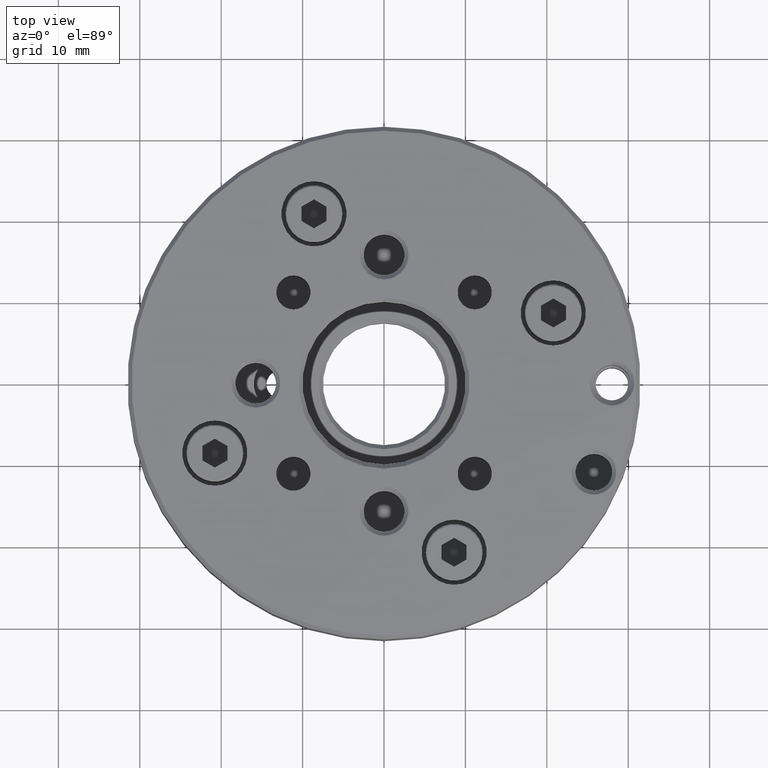
[diagram: clean part render]
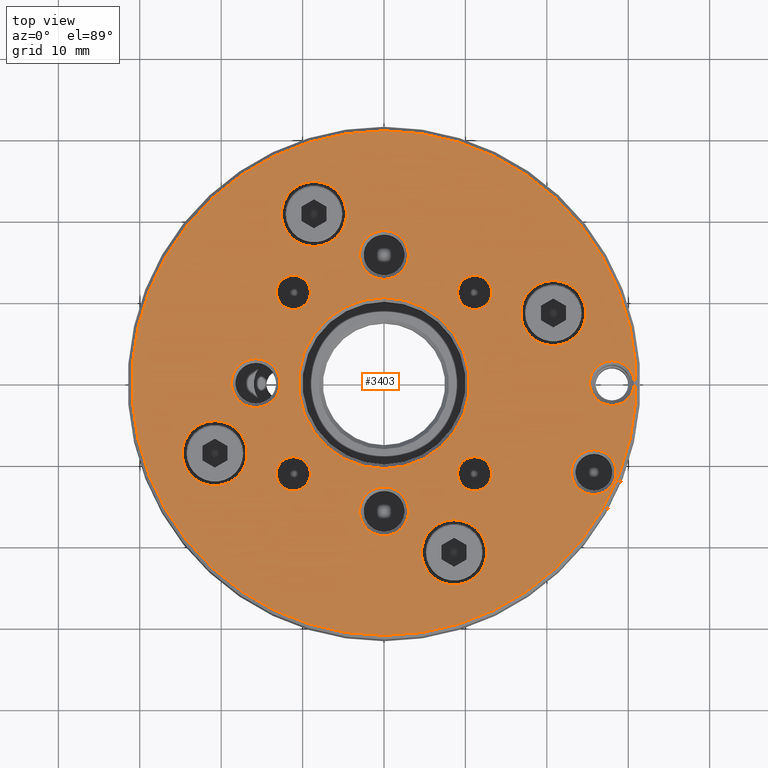
[diagram: same view with one face highlighted and labeled with its STEP entity id]
A machine part, top view. The second image highlights one B-rep face of the part: STEP entity #3403.
In plain terms, the highlighted planar face has unit normal (0, -0, 1).
Its self-contained STEP definition (entity closure, byte-faithful):
#63 = AXIS2_PLACEMENT_3D ( 'NONE', #3410, #287, #2800 ) ;
#82 = CARTESIAN_POINT ( 'NONE',  ( -20.78728948150396150, -8.610377228214501244, 6.500000000000000888 ) ) ;
#101 = CIRCLE ( 'NONE', #3565, 2.750000000000016431 ) ;
#107 = AXIS2_PLACEMENT_3D ( 'NONE', #143, #733, #5930 ) ;
#120 = CARTESIAN_POINT ( 'NONE',  ( 3.608224830031758756E-16, 5.279885597072334881E-41, 6.500000000000000000 ) ) ;
#143 = CARTESIAN_POINT ( 'NONE',  ( 3.608224830031758756E-16, 5.279885597072334881E-41, 6.500000000000000000 ) ) ;
#153 = AXIS2_PLACEMENT_3D ( 'NONE', #4157, #3148, #645 ) ;
#208 = VERTEX_POINT ( 'NONE', #1430 ) ;
#210 = CARTESIAN_POINT ( 'NONE',  ( -15.75000000000000000, 3.000000000000245137, 6.500000000000000888 ) ) ;
#234 = CARTESIAN_POINT ( 'NONE',  ( 28.00000000000000000, 2.750000000000067946, 6.499999999999998224 ) ) ;
#249 = DIRECTION ( 'NONE',  ( -5.551115123125782702E-17, -8.122900918572823875E-42, -1.000000000000000000 ) ) ;
#252 = AXIS2_PLACEMENT_3D ( 'NONE', #120, #3242, #2727 ) ;
#280 = EDGE_CURVE ( 'NONE', #2080, #543, #3225, .T. ) ;
#287 = DIRECTION ( 'NONE',  ( -5.551115123125782702E-17, -8.122900918572823875E-42, -1.000000000000000000 ) ) ;
#291 = CIRCLE ( 'NONE', #2356, 2.099999999999999645 ) ;
#352 = VERTEX_POINT ( 'NONE', #6451 ) ;
#423 = VERTEX_POINT ( 'NONE', #1890 ) ;
#460 = ORIENTED_EDGE ( 'NONE', *, *, #3744, .T. ) ;
#461 = DIRECTION ( 'NONE',  ( 0.0000000000000000000, -1.000000000000000000, 0.0000000000000000000 ) ) ;
#462 = CARTESIAN_POINT ( 'NONE',  ( 20.78728948150396505, 4.610377228214497691, 6.499999999999999112 ) ) ;
#482 = AXIS2_PLACEMENT_3D ( 'NONE', #3699, #4781, #2110 ) ;
#497 = DIRECTION ( 'NONE',  ( 5.551115123125782702E-17, 8.122900918572823875E-42, 1.000000000000000000 ) ) ;
#516 = EDGE_LOOP ( 'NONE', ( #3802, #2490 ) ) ;
#532 = CARTESIAN_POINT ( 'NONE',  ( -20.78728948150396150, -8.610377228214501244, 6.500000000000000888 ) ) ;
#543 = VERTEX_POINT ( 'NONE', #6042 ) ;
#558 = DIRECTION ( 'NONE',  ( -5.551115123125782702E-17, -8.122900918572823875E-42, -1.000000000000000000 ) ) ;
#611 = ORIENTED_EDGE ( 'NONE', *, *, #6184, .F. ) ;
#618 = CIRCLE ( 'NONE', #2560, 3.000000000000068390 ) ;
#645 = DIRECTION ( 'NONE',  ( 0.0000000000000000000, -1.000000000000000000, 0.0000000000000000000 ) ) ;
#659 = DIRECTION ( 'NONE',  ( 0.0000000000000000000, -1.000000000000000000, 0.0000000000000000000 ) ) ;
#661 = DIRECTION ( 'NONE',  ( 0.0000000000000000000, -1.000000000000000000, 0.0000000000000000000 ) ) ;
#686 = DIRECTION ( 'NONE',  ( 0.0000000000000000000, -1.000000000000000000, 0.0000000000000000000 ) ) ;
#692 = FACE_BOUND ( 'NONE', #3286, .T. ) ;
#696 = CIRCLE ( 'NONE', #2425, 10.50000000000004974 ) ;
#704 = EDGE_CURVE ( 'NONE', #5131, #352, #4706, .T. ) ;
#705 = CARTESIAN_POINT ( 'NONE',  ( 3.608224830031758756E-16, -15.75000000000000000, 6.500000000000000000 ) ) ;
#733 = DIRECTION ( 'NONE',  ( 5.551115123125782702E-17, -6.583955517712617581E-42, 1.000000000000000000 ) ) ;
#786 = VERTEX_POINT ( 'NONE', #6478 ) ;
#802 = VERTEX_POINT ( 'NONE', #210 ) ;
#826 = EDGE_CURVE ( 'NONE', #4117, #3380, #4053, .T. ) ;
#851 = VERTEX_POINT ( 'NONE', #1637 ) ;
#866 = AXIS2_PLACEMENT_3D ( 'NONE', #4986, #1915, #4551 ) ;
#915 = ORIENTED_EDGE ( 'NONE', *, *, #2895, .F. ) ;
#958 = AXIS2_PLACEMENT_3D ( 'NONE', #1122, #3189, #2714 ) ;
#970 = ORIENTED_EDGE ( 'NONE', *, *, #6207, .T. ) ;
#1018 = CARTESIAN_POINT ( 'NONE',  ( 11.13693180368810509, -13.23693180368809763, 6.499999999999999112 ) ) ;
#1028 = CIRCLE ( 'NONE', #6531, 3.000000000000071942 ) ;
#1049 = ORIENTED_EDGE ( 'NONE', *, *, #5520, .F. ) ;
#1054 = VERTEX_POINT ( 'NONE', #6499 ) ;
#1060 = CIRCLE ( 'NONE', #2677, 31.00000000000004974 ) ;
#1070 = DIRECTION ( 'NONE',  ( 5.551115123125782702E-17, 8.122900918572823875E-42, 1.000000000000000000 ) ) ;
#1106 = CARTESIAN_POINT ( 'NONE',  ( 3.608224830031758756E-16, 15.75000000000000000, 6.500000000000000000 ) ) ;
#1122 = CARTESIAN_POINT ( 'NONE',  ( 11.13693180368809976, 11.13693180368815128, 6.499999999999999112 ) ) ;
#1134 = ORIENTED_EDGE ( 'NONE', *, *, #5687, .T. ) ;
#1135 = CARTESIAN_POINT ( 'NONE',  ( 3.608224830031758756E-16, -10.50000000000004974, 6.500000000000000000 ) ) ;
#1154 = CIRCLE ( 'NONE', #2341, 4.000000000000000000 ) ;
#1155 = CARTESIAN_POINT ( 'NONE',  ( 7.282165227473905892E-16, -12.74999999999992895, 6.500000000000000000 ) ) ;
#1169 = CIRCLE ( 'NONE', #6458, 3.000000000000068390 ) ;
#1189 = CARTESIAN_POINT ( 'NONE',  ( 4.173965942530845054E-15, -31.00000000000004974, 6.500000000000000000 ) ) ;
#1197 = DIRECTION ( 'NONE',  ( 5.551115123125782702E-17, 8.122900918572823875E-42, 1.000000000000000000 ) ) ;
#1203 = CARTESIAN_POINT ( 'NONE',  ( 8.610377228214499468, -20.78728948150396860, 6.499999999999999112 ) ) ;
#1223 = EDGE_LOOP ( 'NONE', ( #5215, #5971 ) ) ;
#1307 = CARTESIAN_POINT ( 'NONE',  ( -15.75000000000000000, 9.035696567507842603E-14, 6.500000000000000888 ) ) ;
#1315 = DIRECTION ( 'NONE',  ( 0.0000000000000000000, -1.000000000000000000, 0.0000000000000000000 ) ) ;
#1326 = EDGE_CURVE ( 'NONE', #4326, #423, #3082, .T. ) ;
#1334 = ORIENTED_EDGE ( 'NONE', *, *, #3080, .T. ) ;
#1430 = CARTESIAN_POINT ( 'NONE',  ( 11.13693180368809976, 9.036931803688151632, 6.499999999999999112 ) ) ;
#1456 = ORIENTED_EDGE ( 'NONE', *, *, #5486, .T. ) ;
#1459 = CARTESIAN_POINT ( 'NONE',  ( 11.13693180368810509, -11.13693180368809799, 6.499999999999999112 ) ) ;
#1466 = AXIS2_PLACEMENT_3D ( 'NONE', #2215, #3196, #659 ) ;
#1473 = EDGE_LOOP ( 'NONE', ( #1049, #2257 ) ) ;
#1494 = AXIS2_PLACEMENT_3D ( 'NONE', #82, #5694, #3102 ) ;
#1500 = AXIS2_PLACEMENT_3D ( 'NONE', #5194, #6380, #3682 ) ;
#1564 = ORIENTED_EDGE ( 'NONE', *, *, #3858, .T. ) ;
#1593 = AXIS2_PLACEMENT_3D ( 'NONE', #2737, #1865, #5973 ) ;
#1597 = CIRCLE ( 'NONE', #1494, 4.000000000000000000 ) ;
#1623 = CIRCLE ( 'NONE', #866, 2.099999999999999645 ) ;
#1637 = CARTESIAN_POINT ( 'NONE',  ( 3.608224830031758756E-16, -18.75000000000007105, 6.500000000000000000 ) ) ;
#1651 = DIRECTION ( 'NONE',  ( 0.0000000000000000000, -1.000000000000000000, 0.0000000000000000000 ) ) ;
#1676 = EDGE_CURVE ( 'NONE', #2520, #851, #1028, .T. ) ;
#1678 = CARTESIAN_POINT ( 'NONE',  ( 3.608224830031758756E-16, 12.74999999999993072, 6.500000000000000000 ) ) ;
#1741 = CARTESIAN_POINT ( 'NONE',  ( -11.13693180368815128, 11.13693180368814950, 6.500000000000000888 ) ) ;
#1754 = DIRECTION ( 'NONE',  ( 0.0000000000000000000, -1.000000000000000000, 0.0000000000000000000 ) ) ;
#1755 = EDGE_CURVE ( 'NONE', #3285, #3118, #4586, .T. ) ;
#1787 = DIRECTION ( 'NONE',  ( 5.551115123125782702E-17, 8.122900918572823875E-42, 1.000000000000000000 ) ) ;
#1793 = CIRCLE ( 'NONE', #2760, 2.099999999999999645 ) ;
#1801 = EDGE_CURVE ( 'NONE', #5214, #3455, #3069, .T. ) ;
#1819 = FACE_BOUND ( 'NONE', #5601, .T. ) ;
#1827 = DIRECTION ( 'NONE',  ( 5.551115123125782702E-17, 8.122900918572823875E-42, 1.000000000000000000 ) ) ;
#1853 = FACE_BOUND ( 'NONE', #3050, .T. ) ;
#1865 = DIRECTION ( 'NONE',  ( -5.551115123125782702E-17, -8.122900918572823875E-42, -1.000000000000000000 ) ) ;
#1887 = ORIENTED_EDGE ( 'NONE', *, *, #1676, .T. ) ;
#1890 = CARTESIAN_POINT ( 'NONE',  ( 25.77413589666830163, -13.69047159769975153, 6.499999999999998224 ) ) ;
#1915 = DIRECTION ( 'NONE',  ( 5.551115123125782702E-17, 8.122900918572823875E-42, 1.000000000000000000 ) ) ;
#1951 = CIRCLE ( 'NONE', #2810, 3.000000000000071942 ) ;
#2080 = VERTEX_POINT ( 'NONE', #2715 ) ;
#2110 = DIRECTION ( 'NONE',  ( 0.0000000000000000000, -1.000000000000000000, 0.0000000000000000000 ) ) ;
#2188 = VERTEX_POINT ( 'NONE', #4077 ) ;
#2193 = CARTESIAN_POINT ( 'NONE',  ( 3.608224830031758756E-16, -15.75000000000000000, 6.500000000000000000 ) ) ;
#2215 = CARTESIAN_POINT ( 'NONE',  ( 28.00000000000000000, 1.021274108494992091E-14, 6.499999999999998224 ) ) ;
#2218 = DIRECTION ( 'NONE',  ( 5.551115123125782702E-17, 8.122900918572823875E-42, 1.000000000000000000 ) ) ;
#2257 = ORIENTED_EDGE ( 'NONE', *, *, #280, .F. ) ;
#2268 = CARTESIAN_POINT ( 'NONE',  ( -15.75000000000000000, -3.000000000000064837, 6.500000000000000888 ) ) ;
#2272 = VERTEX_POINT ( 'NONE', #3461 ) ;
#2277 = DIRECTION ( 'NONE',  ( 5.551115123125782702E-17, 8.122900918572823875E-42, 1.000000000000000000 ) ) ;
#2296 = CARTESIAN_POINT ( 'NONE',  ( -8.610377228214497691, 20.78728948150396505, 6.500000000000000888 ) ) ;
#2312 = FACE_BOUND ( 'NONE', #4099, .T. ) ;
#2327 = CIRCLE ( 'NONE', #3193, 4.000000000000000000 ) ;
#2330 = AXIS2_PLACEMENT_3D ( 'NONE', #1741, #3227, #2744 ) ;
#2341 = AXIS2_PLACEMENT_3D ( 'NONE', #532, #3143, #4254 ) ;
#2351 = AXIS2_PLACEMENT_3D ( 'NONE', #2296, #6420, #2430 ) ;
#2356 = AXIS2_PLACEMENT_3D ( 'NONE', #3803, #2277, #6436 ) ;
#2361 = CARTESIAN_POINT ( 'NONE',  ( 20.78728948150396505, 8.610377228214495915, 6.499999999999999112 ) ) ;
#2410 = CARTESIAN_POINT ( 'NONE',  ( -11.13693180368814772, -11.13693180368810332, 6.500000000000000888 ) ) ;
#2425 = AXIS2_PLACEMENT_3D ( 'NONE', #6209, #2563, #4631 ) ;
#2430 = DIRECTION ( 'NONE',  ( 0.0000000000000000000, -1.000000000000000000, 0.0000000000000000000 ) ) ;
#2490 = ORIENTED_EDGE ( 'NONE', *, *, #5793, .T. ) ;
#2507 = DIRECTION ( 'NONE',  ( 5.551115123125782702E-17, 8.122900918572823875E-42, 1.000000000000000000 ) ) ;
#2520 = VERTEX_POINT ( 'NONE', #1155 ) ;
#2560 = AXIS2_PLACEMENT_3D ( 'NONE', #1106, #558, #3581 ) ;
#2563 = DIRECTION ( 'NONE',  ( -5.551115123125782702E-17, -8.122900918572823875E-42, -1.000000000000000000 ) ) ;
#2583 = CIRCLE ( 'NONE', #6551, 4.000000000000000000 ) ;
#2677 = AXIS2_PLACEMENT_3D ( 'NONE', #5819, #1197, #4237 ) ;
#2714 = DIRECTION ( 'NONE',  ( 0.0000000000000000000, -1.000000000000000000, 0.0000000000000000000 ) ) ;
#2715 = CARTESIAN_POINT ( 'NONE',  ( -8.610377228214497691, 24.78728948150396505, 6.500000000000000888 ) ) ;
#2722 = FACE_BOUND ( 'NONE', #1223, .T. ) ;
#2727 = DIRECTION ( 'NONE',  ( 0.0000000000000000000, -1.000000000000000000, 0.0000000000000000000 ) ) ;
#2737 = CARTESIAN_POINT ( 'NONE',  ( -15.75000000000000000, 9.035696567507842603E-14, 6.500000000000000888 ) ) ;
#2744 = DIRECTION ( 'NONE',  ( 0.0000000000000000000, -1.000000000000000000, 0.0000000000000000000 ) ) ;
#2760 = AXIS2_PLACEMENT_3D ( 'NONE', #2410, #5991, #4547 ) ;
#2800 = DIRECTION ( 'NONE',  ( 0.0000000000000000000, -1.000000000000000000, 0.0000000000000000000 ) ) ;
#2810 = AXIS2_PLACEMENT_3D ( 'NONE', #705, #249, #5429 ) ;
#2814 = EDGE_CURVE ( 'NONE', #5981, #4030, #5892, .T. ) ;
#2822 = CARTESIAN_POINT ( 'NONE',  ( 3.608224830031758756E-16, 15.75000000000000000, 6.500000000000000000 ) ) ;
#2895 = EDGE_CURVE ( 'NONE', #5864, #786, #1154, .T. ) ;
#2952 = ORIENTED_EDGE ( 'NONE', *, *, #5094, .F. ) ;
#3050 = EDGE_LOOP ( 'NONE', ( #915, #4652 ) ) ;
#3069 = CIRCLE ( 'NONE', #5001, 31.00000000000004974 ) ;
#3080 = EDGE_CURVE ( 'NONE', #4383, #3862, #6657, .T. ) ;
#3082 = CIRCLE ( 'NONE', #153, 2.750000000000016431 ) ;
#3102 = DIRECTION ( 'NONE',  ( 0.0000000000000000000, -1.000000000000000000, 0.0000000000000000000 ) ) ;
#3118 = VERTEX_POINT ( 'NONE', #3377 ) ;
#3143 = DIRECTION ( 'NONE',  ( 5.551115123125782702E-17, 8.122900918572823875E-42, 1.000000000000000000 ) ) ;
#3148 = DIRECTION ( 'NONE',  ( -5.551115123125782702E-17, -8.122900918572823875E-42, -1.000000000000000000 ) ) ;
#3159 = DIRECTION ( 'NONE',  ( -5.551115123125782702E-17, -8.122900918572823875E-42, -1.000000000000000000 ) ) ;
#3181 = ORIENTED_EDGE ( 'NONE', *, *, #3916, .T. ) ;
#3189 = DIRECTION ( 'NONE',  ( 5.551115123125782702E-17, 8.122900918572823875E-42, 1.000000000000000000 ) ) ;
#3193 = AXIS2_PLACEMENT_3D ( 'NONE', #6132, #6537, #4063 ) ;
#3196 = DIRECTION ( 'NONE',  ( -5.551115123125782702E-17, -8.122900918572823875E-42, -1.000000000000000000 ) ) ;
#3199 = CARTESIAN_POINT ( 'NONE',  ( 28.00000000000000000, -2.750000000000047073, 6.499999999999998224 ) ) ;
#3208 = DIRECTION ( 'NONE',  ( -5.551115123125782702E-17, -8.122900918572823875E-42, -1.000000000000000000 ) ) ;
#3213 = CARTESIAN_POINT ( 'NONE',  ( -11.13693180368815128, 13.23693180368814915, 6.500000000000000888 ) ) ;
#3225 = CIRCLE ( 'NONE', #1500, 4.000000000000000000 ) ;
#3227 = DIRECTION ( 'NONE',  ( 5.551115123125782702E-17, 8.122900918572823875E-42, 1.000000000000000000 ) ) ;
#3242 = DIRECTION ( 'NONE',  ( -5.551115123125782702E-17, -8.122900918572823875E-42, -1.000000000000000000 ) ) ;
#3262 = DIRECTION ( 'NONE',  ( 0.0000000000000000000, -1.000000000000000000, 0.0000000000000000000 ) ) ;
#3285 = VERTEX_POINT ( 'NONE', #1135 ) ;
#3286 = EDGE_LOOP ( 'NONE', ( #3991, #3437 ) ) ;
#3301 = FACE_BOUND ( 'NONE', #6493, .T. ) ;
#3338 = FACE_BOUND ( 'NONE', #4109, .T. ) ;
#3342 = EDGE_CURVE ( 'NONE', #786, #5864, #1597, .T. ) ;
#3374 = CARTESIAN_POINT ( 'NONE',  ( 3.608224830031758756E-16, 5.279885597072334881E-41, 6.500000000000000000 ) ) ;
#3377 = CARTESIAN_POINT ( 'NONE',  ( 1.646701622107902623E-15, 10.50000000000004974, 6.500000000000000000 ) ) ;
#3380 = VERTEX_POINT ( 'NONE', #4112 ) ;
#3403 = ADVANCED_FACE ( 'NONE', ( #5291, #1819, #2312, #4378, #4418, #5317, #4281, #2722, #3776, #4784, #3301, #3338, #692, #1853, #6400 ), #3808, .T. ) ;
#3410 = CARTESIAN_POINT ( 'NONE',  ( 28.00000000000000000, 1.021274108494992091E-14, 6.499999999999998224 ) ) ;
#3430 = ORIENTED_EDGE ( 'NONE', *, *, #3578, .F. ) ;
#3437 = ORIENTED_EDGE ( 'NONE', *, *, #4428, .F. ) ;
#3455 = VERTEX_POINT ( 'NONE', #5828 ) ;
#3461 = CARTESIAN_POINT ( 'NONE',  ( 11.13693180368810509, -9.036931803688098341, 6.499999999999999112 ) ) ;
#3508 = EDGE_LOOP ( 'NONE', ( #611, #2952 ) ) ;
#3551 = ORIENTED_EDGE ( 'NONE', *, *, #2814, .F. ) ;
#3565 = AXIS2_PLACEMENT_3D ( 'NONE', #3668, #3159, #3631 ) ;
#3567 = ORIENTED_EDGE ( 'NONE', *, *, #4888, .T. ) ;
#3578 = EDGE_CURVE ( 'NONE', #3380, #4117, #1623, .T. ) ;
#3581 = DIRECTION ( 'NONE',  ( 0.0000000000000000000, -1.000000000000000000, 0.0000000000000000000 ) ) ;
#3631 = DIRECTION ( 'NONE',  ( 0.0000000000000000000, -1.000000000000000000, 0.0000000000000000000 ) ) ;
#3644 = EDGE_LOOP ( 'NONE', ( #6342, #1887 ) ) ;
#3668 = CARTESIAN_POINT ( 'NONE',  ( 25.77413589666830163, -10.94047159769973554, 6.499999999999998224 ) ) ;
#3682 = DIRECTION ( 'NONE',  ( 0.0000000000000000000, -1.000000000000000000, 0.0000000000000000000 ) ) ;
#3699 = CARTESIAN_POINT ( 'NONE',  ( 11.13693180368810509, -11.13693180368809799, 6.499999999999999112 ) ) ;
#3734 = CIRCLE ( 'NONE', #1466, 2.750000000000057732 ) ;
#3744 = EDGE_CURVE ( 'NONE', #423, #4326, #101, .T. ) ;
#3757 = CIRCLE ( 'NONE', #958, 2.099999999999999645 ) ;
#3770 = DIRECTION ( 'NONE',  ( -5.551115123125782702E-17, -8.122900918572823875E-42, -1.000000000000000000 ) ) ;
#3776 = FACE_BOUND ( 'NONE', #3508, .T. ) ;
#3802 = ORIENTED_EDGE ( 'NONE', *, *, #1755, .T. ) ;
#3803 = CARTESIAN_POINT ( 'NONE',  ( 11.13693180368809976, 11.13693180368815128, 6.499999999999999112 ) ) ;
#3808 = PLANE ( 'NONE',  #107 ) ;
#3833 = DIRECTION ( 'NONE',  ( -5.551115123125782702E-17, -8.122900918572823875E-42, -1.000000000000000000 ) ) ;
#3858 = EDGE_CURVE ( 'NONE', #802, #5408, #3864, .T. ) ;
#3862 = VERTEX_POINT ( 'NONE', #234 ) ;
#3864 = CIRCLE ( 'NONE', #5909, 3.000000000000154987 ) ;
#3882 = EDGE_CURVE ( 'NONE', #208, #2188, #291, .T. ) ;
#3916 = EDGE_CURVE ( 'NONE', #1054, #4368, #1169, .T. ) ;
#3949 = VERTEX_POINT ( 'NONE', #1018 ) ;
#3961 = CARTESIAN_POINT ( 'NONE',  ( -11.13693180368814772, -9.036931803688103670, 6.500000000000000888 ) ) ;
#3991 = ORIENTED_EDGE ( 'NONE', *, *, #6324, .F. ) ;
#4030 = VERTEX_POINT ( 'NONE', #462 ) ;
#4053 = CIRCLE ( 'NONE', #2330, 2.099999999999999645 ) ;
#4063 = DIRECTION ( 'NONE',  ( 0.0000000000000000000, -1.000000000000000000, 0.0000000000000000000 ) ) ;
#4077 = CARTESIAN_POINT ( 'NONE',  ( 11.13693180368809976, 13.23693180368815092, 6.499999999999999112 ) ) ;
#4099 = EDGE_LOOP ( 'NONE', ( #1134, #3181 ) ) ;
#4109 = EDGE_LOOP ( 'NONE', ( #5430, #3551 ) ) ;
#4112 = CARTESIAN_POINT ( 'NONE',  ( -11.13693180368815128, 9.036931803688149856, 6.500000000000000888 ) ) ;
#4117 = VERTEX_POINT ( 'NONE', #3213 ) ;
#4157 = CARTESIAN_POINT ( 'NONE',  ( 25.77413589666830163, -10.94047159769973554, 6.499999999999998224 ) ) ;
#4181 = CIRCLE ( 'NONE', #2351, 4.000000000000000000 ) ;
#4193 = AXIS2_PLACEMENT_3D ( 'NONE', #1459, #2507, #6663 ) ;
#4237 = DIRECTION ( 'NONE',  ( 0.0000000000000000000, -1.000000000000000000, 0.0000000000000000000 ) ) ;
#4248 = CARTESIAN_POINT ( 'NONE',  ( -11.13693180368814772, -11.13693180368810332, 6.500000000000000888 ) ) ;
#4254 = DIRECTION ( 'NONE',  ( 0.0000000000000000000, -1.000000000000000000, 0.0000000000000000000 ) ) ;
#4277 = EDGE_CURVE ( 'NONE', #851, #2520, #1951, .T. ) ;
#4281 = FACE_OUTER_BOUND ( 'NONE', #6234, .T. ) ;
#4326 = VERTEX_POINT ( 'NONE', #4351 ) ;
#4351 = CARTESIAN_POINT ( 'NONE',  ( 25.77413589666830163, -8.190471597699719553, 6.499999999999998224 ) ) ;
#4368 = VERTEX_POINT ( 'NONE', #1678 ) ;
#4378 = FACE_BOUND ( 'NONE', #4454, .T. ) ;
#4383 = VERTEX_POINT ( 'NONE', #3199 ) ;
#4418 = FACE_BOUND ( 'NONE', #5494, .T. ) ;
#4428 = EDGE_CURVE ( 'NONE', #6303, #5532, #2583, .T. ) ;
#4454 = EDGE_LOOP ( 'NONE', ( #460, #5979 ) ) ;
#4535 = CARTESIAN_POINT ( 'NONE',  ( 20.78728948150396505, 8.610377228214495915, 6.499999999999999112 ) ) ;
#4547 = DIRECTION ( 'NONE',  ( 0.0000000000000000000, -1.000000000000000000, 0.0000000000000000000 ) ) ;
#4551 = DIRECTION ( 'NONE',  ( 0.0000000000000000000, -1.000000000000000000, 0.0000000000000000000 ) ) ;
#4553 = EDGE_LOOP ( 'NONE', ( #4775, #5023 ) ) ;
#4586 = CIRCLE ( 'NONE', #252, 10.50000000000004974 ) ;
#4631 = DIRECTION ( 'NONE',  ( 0.0000000000000000000, -1.000000000000000000, 0.0000000000000000000 ) ) ;
#4652 = ORIENTED_EDGE ( 'NONE', *, *, #3342, .F. ) ;
#4706 = CIRCLE ( 'NONE', #5450, 2.099999999999999645 ) ;
#4721 = ORIENTED_EDGE ( 'NONE', *, *, #1801, .T. ) ;
#4725 = CIRCLE ( 'NONE', #1593, 3.000000000000154987 ) ;
#4775 = ORIENTED_EDGE ( 'NONE', *, *, #6398, .F. ) ;
#4781 = DIRECTION ( 'NONE',  ( 5.551115123125782702E-17, 8.122900918572823875E-42, 1.000000000000000000 ) ) ;
#4784 = FACE_BOUND ( 'NONE', #4553, .T. ) ;
#4855 = EDGE_CURVE ( 'NONE', #2188, #208, #3757, .T. ) ;
#4859 = CARTESIAN_POINT ( 'NONE',  ( -20.78728948150396150, -12.61037722821450124, 6.500000000000000888 ) ) ;
#4888 = EDGE_CURVE ( 'NONE', #3455, #5214, #1060, .T. ) ;
#4956 = CARTESIAN_POINT ( 'NONE',  ( 8.610377228214499468, -16.78728948150396860, 6.499999999999999112 ) ) ;
#4986 = CARTESIAN_POINT ( 'NONE',  ( -11.13693180368815128, 11.13693180368814950, 6.500000000000000888 ) ) ;
#5001 = AXIS2_PLACEMENT_3D ( 'NONE', #3374, #1787, #1754 ) ;
#5023 = ORIENTED_EDGE ( 'NONE', *, *, #704, .F. ) ;
#5094 = EDGE_CURVE ( 'NONE', #2272, #3949, #5596, .T. ) ;
#5131 = VERTEX_POINT ( 'NONE', #3961 ) ;
#5194 = CARTESIAN_POINT ( 'NONE',  ( -8.610377228214497691, 20.78728948150396505, 6.500000000000000888 ) ) ;
#5214 = VERTEX_POINT ( 'NONE', #1189 ) ;
#5215 = ORIENTED_EDGE ( 'NONE', *, *, #3882, .F. ) ;
#5291 = FACE_BOUND ( 'NONE', #3644, .T. ) ;
#5317 = FACE_BOUND ( 'NONE', #516, .T. ) ;
#5338 = CIRCLE ( 'NONE', #482, 2.099999999999999645 ) ;
#5408 = VERTEX_POINT ( 'NONE', #2268 ) ;
#5429 = DIRECTION ( 'NONE',  ( 0.0000000000000000000, -1.000000000000000000, 0.0000000000000000000 ) ) ;
#5430 = ORIENTED_EDGE ( 'NONE', *, *, #5957, .F. ) ;
#5448 = AXIS2_PLACEMENT_3D ( 'NONE', #2361, #1827, #1315 ) ;
#5450 = AXIS2_PLACEMENT_3D ( 'NONE', #4248, #1070, #6300 ) ;
#5486 = EDGE_CURVE ( 'NONE', #5408, #802, #4725, .T. ) ;
#5494 = EDGE_LOOP ( 'NONE', ( #1334, #970 ) ) ;
#5520 = EDGE_CURVE ( 'NONE', #543, #2080, #4181, .T. ) ;
#5532 = VERTEX_POINT ( 'NONE', #6117 ) ;
#5568 = AXIS2_PLACEMENT_3D ( 'NONE', #4535, #497, #461 ) ;
#5596 = CIRCLE ( 'NONE', #4193, 2.099999999999999645 ) ;
#5601 = EDGE_LOOP ( 'NONE', ( #1456, #1564 ) ) ;
#5687 = EDGE_CURVE ( 'NONE', #4368, #1054, #618, .T. ) ;
#5694 = DIRECTION ( 'NONE',  ( 5.551115123125782702E-17, 8.122900918572823875E-42, 1.000000000000000000 ) ) ;
#5793 = EDGE_CURVE ( 'NONE', #3118, #3285, #696, .T. ) ;
#5819 = CARTESIAN_POINT ( 'NONE',  ( 3.608224830031758756E-16, 5.279885597072334881E-41, 6.500000000000000000 ) ) ;
#5828 = CARTESIAN_POINT ( 'NONE',  ( 3.469446951953631445E-16, 31.00000000000004974, 6.500000000000000000 ) ) ;
#5864 = VERTEX_POINT ( 'NONE', #4859 ) ;
#5892 = CIRCLE ( 'NONE', #5568, 3.999999999999999112 ) ;
#5909 = AXIS2_PLACEMENT_3D ( 'NONE', #1307, #3833, #3262 ) ;
#5930 = DIRECTION ( 'NONE',  ( -6.415097052126652424E-43, -1.000000000000000000, -6.583955517712617581E-42 ) ) ;
#5957 = EDGE_CURVE ( 'NONE', #4030, #5981, #6528, .T. ) ;
#5971 = ORIENTED_EDGE ( 'NONE', *, *, #4855, .F. ) ;
#5973 = DIRECTION ( 'NONE',  ( 0.0000000000000000000, -1.000000000000000000, 0.0000000000000000000 ) ) ;
#5979 = ORIENTED_EDGE ( 'NONE', *, *, #1326, .T. ) ;
#5981 = VERTEX_POINT ( 'NONE', #6344 ) ;
#5991 = DIRECTION ( 'NONE',  ( 5.551115123125782702E-17, 8.122900918572823875E-42, 1.000000000000000000 ) ) ;
#6042 = CARTESIAN_POINT ( 'NONE',  ( -8.610377228214497691, 16.78728948150396505, 6.500000000000000888 ) ) ;
#6117 = CARTESIAN_POINT ( 'NONE',  ( 8.610377228214499468, -24.78728948150396860, 6.499999999999999112 ) ) ;
#6132 = CARTESIAN_POINT ( 'NONE',  ( 8.610377228214499468, -20.78728948150396860, 6.499999999999999112 ) ) ;
#6184 = EDGE_CURVE ( 'NONE', #3949, #2272, #5338, .T. ) ;
#6207 = EDGE_CURVE ( 'NONE', #3862, #4383, #3734, .T. ) ;
#6209 = CARTESIAN_POINT ( 'NONE',  ( 3.608224830031758756E-16, 5.279885597072334881E-41, 6.500000000000000000 ) ) ;
#6234 = EDGE_LOOP ( 'NONE', ( #3567, #4721 ) ) ;
#6300 = DIRECTION ( 'NONE',  ( 0.0000000000000000000, -1.000000000000000000, 0.0000000000000000000 ) ) ;
#6303 = VERTEX_POINT ( 'NONE', #4956 ) ;
#6324 = EDGE_CURVE ( 'NONE', #5532, #6303, #2327, .T. ) ;
#6342 = ORIENTED_EDGE ( 'NONE', *, *, #4277, .T. ) ;
#6344 = CARTESIAN_POINT ( 'NONE',  ( 20.78728948150396505, 12.61037722821449414, 6.499999999999999112 ) ) ;
#6380 = DIRECTION ( 'NONE',  ( 5.551115123125782702E-17, 8.122900918572823875E-42, 1.000000000000000000 ) ) ;
#6398 = EDGE_CURVE ( 'NONE', #352, #5131, #1793, .T. ) ;
#6400 = FACE_BOUND ( 'NONE', #1473, .T. ) ;
#6420 = DIRECTION ( 'NONE',  ( 5.551115123125782702E-17, 8.122900918572823875E-42, 1.000000000000000000 ) ) ;
#6436 = DIRECTION ( 'NONE',  ( 0.0000000000000000000, -1.000000000000000000, 0.0000000000000000000 ) ) ;
#6451 = CARTESIAN_POINT ( 'NONE',  ( -11.13693180368814772, -13.23693180368810296, 6.500000000000000888 ) ) ;
#6458 = AXIS2_PLACEMENT_3D ( 'NONE', #2822, #3770, #686 ) ;
#6478 = CARTESIAN_POINT ( 'NONE',  ( -20.78728948150396150, -4.610377228214501244, 6.500000000000000888 ) ) ;
#6493 = EDGE_LOOP ( 'NONE', ( #3430, #6582 ) ) ;
#6499 = CARTESIAN_POINT ( 'NONE',  ( 7.282165227473901948E-16, 18.75000000000006750, 6.500000000000000000 ) ) ;
#6528 = CIRCLE ( 'NONE', #5448, 3.999999999999999112 ) ;
#6531 = AXIS2_PLACEMENT_3D ( 'NONE', #2193, #3208, #1651 ) ;
#6537 = DIRECTION ( 'NONE',  ( 5.551115123125782702E-17, 8.122900918572823875E-42, 1.000000000000000000 ) ) ;
#6551 = AXIS2_PLACEMENT_3D ( 'NONE', #1203, #2218, #661 ) ;
#6582 = ORIENTED_EDGE ( 'NONE', *, *, #826, .F. ) ;
#6657 = CIRCLE ( 'NONE', #63, 2.750000000000057732 ) ;
#6663 = DIRECTION ( 'NONE',  ( 0.0000000000000000000, -1.000000000000000000, 0.0000000000000000000 ) ) ;